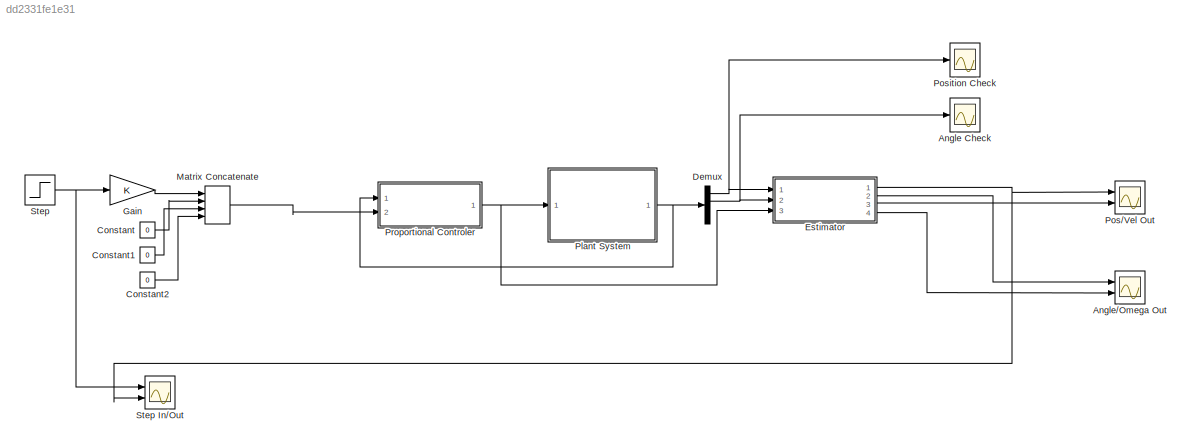
MODEL slx_dd2331fe1e31
KIND model
CONFIG AbsTol = auto
CONFIG FixedStep = auto
CONFIG MaxStep = auto
CONFIG MinStep = auto
CONFIG RelTol = 1e-3
CONFIG SampleTimeConstraint = Unconstrained
CONFIG Solver = VariableStepAuto
CONFIG SolverMode = Auto
CONFIG SolverName = VariableStepAuto
CONFIG StartTime = 0.0
CONFIG StopTime = 20.0
BLOCK [Scope] Angle Check
  Ports = [1]
  ScopeSpecificationString = Simulink.scopes.TimeScopeBlockCfg('CurrentConfiguration', extmgr.ConfigurationSet(extmgr.Configuration('Core','General UI',true),extmgr.Configuration('Core','Source UI',true),extmgr.Configuration('Sources','WiredSimulink',true,'DataLoggingVariableName','ScopeData3'),extmgr.Configuration('Visuals','Time Domain',true,'SerializedDisplays',{struct('MinYLimReal','-1.00000','MaxYLimReal','1.00000','YLab...<+1444ch>
BLOCK [Scope] Angle//Omega Out
  NumInputPorts = 2
  Ports = [2]
  ScopeSpecificationString = Simulink.scopes.TimeScopeBlockCfg('CurrentConfiguration', extmgr.ConfigurationSet(extmgr.Configuration('Core','General UI',true),extmgr.Configuration('Core','Source UI',true),extmgr.Configuration('Sources','WiredSimulink',true,'DataLoggingLimitDataPoints',true,'DataLoggingSaveFormat','Array','DataLoggingDecimation','1','DataLoggingDecimateData',true,'DataLoggingVariableName','ScopeData1'),extmgr.C...<+1564ch>
BLOCK [Constant] Constant
  Value = 0
BLOCK [Constant] Constant1
  Value = 0
BLOCK [Constant] Constant2
  Value = 0
BLOCK [Demux] Demux
  DisplayOption = bar
  Ports = [1, 4]
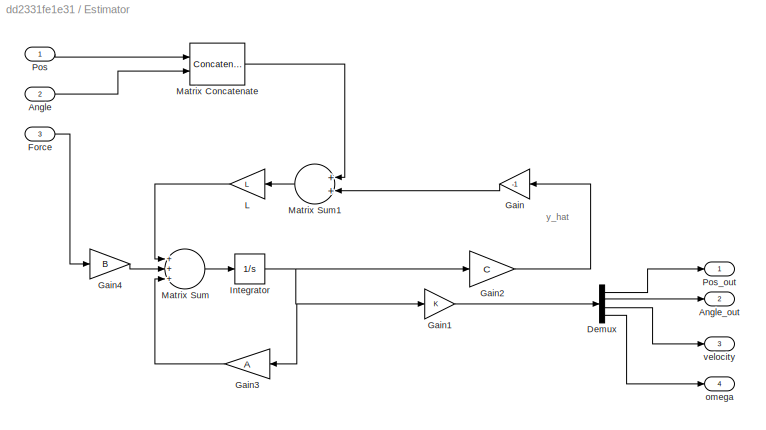
BLOCK [SubSystem] Estimator
  Ports = [3, 4]
  RequestExecContextInheritance = off
  Variant = off
BLOCK [Inport] Estimator/Angle
  IconDisplay = Port number
  Port = 2
BLOCK [Outport] Estimator/Angle_out 
  IconDisplay = Port number
  Port = 2
BLOCK [Demux] Estimator/Demux
  DisplayOption = bar
  Ports = [1, 4]
BLOCK [Inport] Estimator/Force
  IconDisplay = Port number
  Port = 3
BLOCK [Gain] Estimator/Gain
  Gain = -1
  OutDataTypeStr = Inherit: Inherit via internal rule
  ParamDataTypeStr = Inherit: Inherit via internal rule
  SaturateOnIntegerOverflow = off
BLOCK [Gain] Estimator/Gain1
  OutDataTypeStr = Inherit: Inherit via internal rule
  ParamDataTypeStr = Inherit: Inherit via internal rule
  SaturateOnIntegerOverflow = off
BLOCK [Gain] Estimator/Gain2
  Gain = C
  Multiplication = Matrix(K*u)
  OutDataTypeStr = Inherit: Inherit via internal rule
  ParamDataTypeStr = Inherit: Inherit via internal rule
  SaturateOnIntegerOverflow = off
BLOCK [Gain] Estimator/Gain3
  Gain = A
  Multiplication = Matrix(K*u)
  OutDataTypeStr = Inherit: Inherit via internal rule
  ParamDataTypeStr = Inherit: Inherit via internal rule
  SaturateOnIntegerOverflow = off
BLOCK [Gain] Estimator/Gain4
  Gain = B
  Multiplication = Matrix(K*u)
  OutDataTypeStr = Inherit: Inherit via internal rule
  ParamDataTypeStr = Inherit: Inherit via internal rule
  SaturateOnIntegerOverflow = off
BLOCK [Integrator] Estimator/Integrator
  Ports = [1, 1]
BLOCK [Gain] Estimator/L
  Gain = L
  Multiplication = Matrix(K*u)
  OutDataTypeStr = Inherit: Inherit via internal rule
  ParamDataTypeStr = Inherit: Inherit via internal rule
  SaturateOnIntegerOverflow = off
BLOCK [Concatenate] Estimator/Matrix Concatenate
  Mode = Multidimensional array
  Ports = [2, 1]
BLOCK [Sum] Estimator/Matrix Sum
  Inputs = +++|
  OutDataTypeStr = Inherit: Inherit via internal rule
  Ports = [3, 1]
  SaturateOnIntegerOverflow = off
BLOCK [Sum] Estimator/Matrix Sum1
  InputSameDT = off
  Inputs = ++|
  OutDataTypeStr = Inherit: Inherit via internal rule
  Ports = [2, 1]
  SaturateOnIntegerOverflow = off
BLOCK [Inport] Estimator/Pos
  IconDisplay = Port number
BLOCK [Outport] Estimator/Pos_out
  IconDisplay = Port number
BLOCK [Outport] Estimator/omega
  IconDisplay = Port number
  Port = 4
BLOCK [Outport] Estimator/velocity 
  IconDisplay = Port number
  Port = 3
BLOCK [Gain] Gain
  OutDataTypeStr = Inherit: Inherit via internal rule
  ParamDataTypeStr = Inherit: Inherit via internal rule
  SaturateOnIntegerOverflow = off
BLOCK [Concatenate] Matrix Concatenate
  Mode = Multidimensional array
  NumInputs = 4
  Ports = [4, 1]
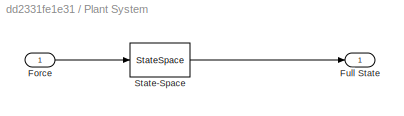
BLOCK [SubSystem] Plant System
  Ports = [1, 1]
  RequestExecContextInheritance = off
  Variant = off
BLOCK [Inport] Plant System/Force
  IconDisplay = Port number
BLOCK [Outport] Plant System/Full State
  IconDisplay = Port number
BLOCK [StateSpace] Plant System/State-Space
  A = A
  B = B
  C = C
  D = D
  Ports = [1, 1]
  X0 = [0;0;0;0]
BLOCK [Scope] Pos//Vel Out
  NumInputPorts = 2
  Ports = [2]
  ScopeSpecificationString = Simulink.scopes.TimeScopeBlockCfg('CurrentConfiguration', extmgr.ConfigurationSet(extmgr.Configuration('Core','General UI',true),extmgr.Configuration('Core','Source UI',true),extmgr.Configuration('Sources','WiredSimulink',true,'DataLoggingLimitDataPoints',true,'DataLoggingSaveFormat','Array','DataLoggingDecimation','1','DataLoggingDecimateData',true),extmgr.Configuration('Visuals','Time Domain',tr...<+1561ch>
BLOCK [Scope] Position Check
  Ports = [1]
  ScopeSpecificationString = Simulink.scopes.TimeScopeBlockCfg('CurrentConfiguration', extmgr.ConfigurationSet(extmgr.Configuration('Core','General UI',true),extmgr.Configuration('Core','Source UI',true),extmgr.Configuration('Sources','WiredSimulink',true,'DataLoggingVariableName','ScopeData2'),extmgr.Configuration('Visuals','Time Domain',true,'SerializedDisplays',{struct('MinYLimReal','-1.00000','MaxYLimReal','1.00000','YLab...<+1444ch>
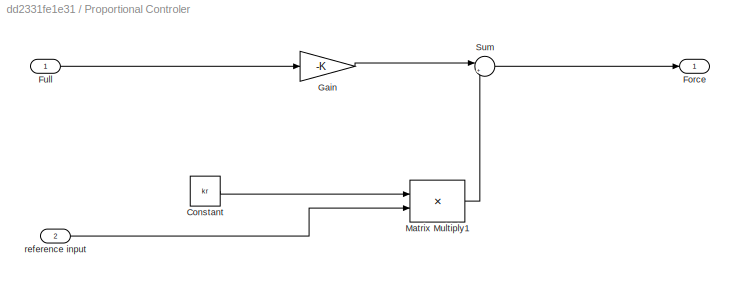
BLOCK [SubSystem] Proportional Controler
  Ports = [2, 1]
  RequestExecContextInheritance = off
  Variant = off
BLOCK [Constant] Proportional Controler/Constant
  Value = kr
  VectorParams1D = off
BLOCK [Outport] Proportional Controler/Force
  IconDisplay = Port number
BLOCK [Inport] Proportional Controler/Full
  IconDisplay = Port number
BLOCK [Gain] Proportional Controler/Gain
  Gain = -K
  Multiplication = Matrix(K*u)
  OutDataTypeStr = Inherit: Inherit via internal rule
  ParamDataTypeStr = Inherit: Inherit via internal rule
  SaturateOnIntegerOverflow = off
BLOCK [Product] Proportional Controler/Matrix Multiply1
  InputSameDT = off
  Multiplication = Matrix(*)
  OutDataTypeStr = Inherit: Inherit via internal rule
  Ports = [2, 1]
  RndMeth = Floor
  SaturateOnIntegerOverflow = off
BLOCK [Sum] Proportional Controler/Sum
  IconShape = round
  InputSameDT = off
  Inputs = |++
  OutDataTypeStr = Inherit: Inherit via internal rule
  Ports = [2, 1]
  SaturateOnIntegerOverflow = off
BLOCK [Inport] Proportional Controler/reference input
  IconDisplay = Port number
  Port = 2
BLOCK [Step] Step
  SampleTime = 0
BLOCK [Scope] Step In//Out 
  NumInputPorts = 2
  Ports = [2]
  ScopeSpecificationString = Simulink.scopes.TimeScopeBlockCfg('CurrentConfiguration', extmgr.ConfigurationSet(extmgr.Configuration('Core','General UI',true),extmgr.Configuration('Core','Source UI',true),extmgr.Configuration('Sources','WiredSimulink',true,'DataLoggingVariableName','ScopeData1'),extmgr.Configuration('Visuals','Time Domain',true,'SerializedDisplays',{struct('MinYLimReal','-85694316004393448000000000000000000000...<+2540ch>
ANNOTATION Estimator: y_hat
LINE Constant1:1 -> Matrix Concatenate:3
LINE Constant2:1 -> Matrix Concatenate:4
LINE Constant:1 -> Matrix Concatenate:2
NET Demux:1 -> Estimator:1, Position Check:1
NET Demux:2 -> Angle Check:1, Estimator:2
LINE Estimator/Angle:1 -> Estimator/Matrix Concatenate:2
LINE Estimator/Demux:1 -> Estimator/Pos_out:1
LINE Estimator/Demux:2 -> Estimator/Angle_out :1
LINE Estimator/Demux:3 -> Estimator/velocity :1
LINE Estimator/Demux:4 -> Estimator/omega:1
LINE Estimator/Force:1 -> Estimator/Gain4:1
LINE Estimator/Gain1:1 -> Estimator/Demux:1
LINE Estimator/Gain2:1 -> Estimator/Gain:1
LINE Estimator/Gain3:1 -> Estimator/Matrix Sum:3
LINE Estimator/Gain4:1 -> Estimator/Matrix Sum:2
LINE Estimator/Gain:1 -> Estimator/Matrix Sum1:2
NET Estimator/Integrator:1 -> Estimator/Gain1:1, Estimator/Gain2:1, Estimator/Gain3:1
LINE Estimator/L:1 -> Estimator/Matrix Sum:1
LINE Estimator/Matrix Concatenate:1 -> Estimator/Matrix Sum1:1
LINE Estimator/Matrix Sum1:1 -> Estimator/L:1
LINE Estimator/Matrix Sum:1 -> Estimator/Integrator:1
LINE Estimator/Pos:1 -> Estimator/Matrix Concatenate:1
NET Estimator:1 -> Pos//Vel Out:1, Step In//Out :2
LINE Estimator:2 -> Angle//Omega Out:1
LINE Estimator:3 -> Pos//Vel Out:2
LINE Estimator:4 -> Angle//Omega Out:2
LINE Gain:1 -> Matrix Concatenate:1
LINE Matrix Concatenate:1 -> Proportional Controler:2
LINE Plant System/Force:1 -> Plant System/State-Space:1
LINE Plant System/State-Space:1 -> Plant System/Full State:1
NET Plant System:1 -> Demux:1, Proportional Controler:1
LINE Proportional Controler/Constant:1 -> Proportional Controler/Matrix Multiply1:1
LINE Proportional Controler/Full:1 -> Proportional Controler/Gain:1
LINE Proportional Controler/Gain:1 -> Proportional Controler/Sum:1
LINE Proportional Controler/Matrix Multiply1:1 -> Proportional Controler/Sum:2
LINE Proportional Controler/Sum:1 -> Proportional Controler/Force:1
LINE Proportional Controler/reference input:1 -> Proportional Controler/Matrix Multiply1:2
NET Proportional Controler:1 -> Estimator:3, Plant System:1
NET Step:1 -> Gain:1, Step In//Out :1
note: NET lines group one-source signal fan-out (src -> all destinations, sorted); 1:1 wires keep LINE
